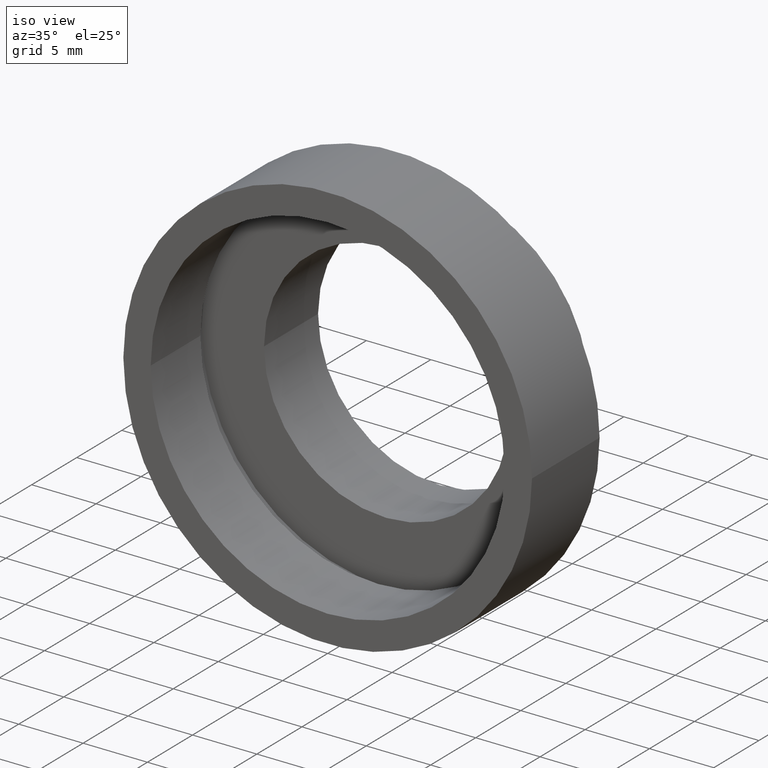
[diagram: clean part render]
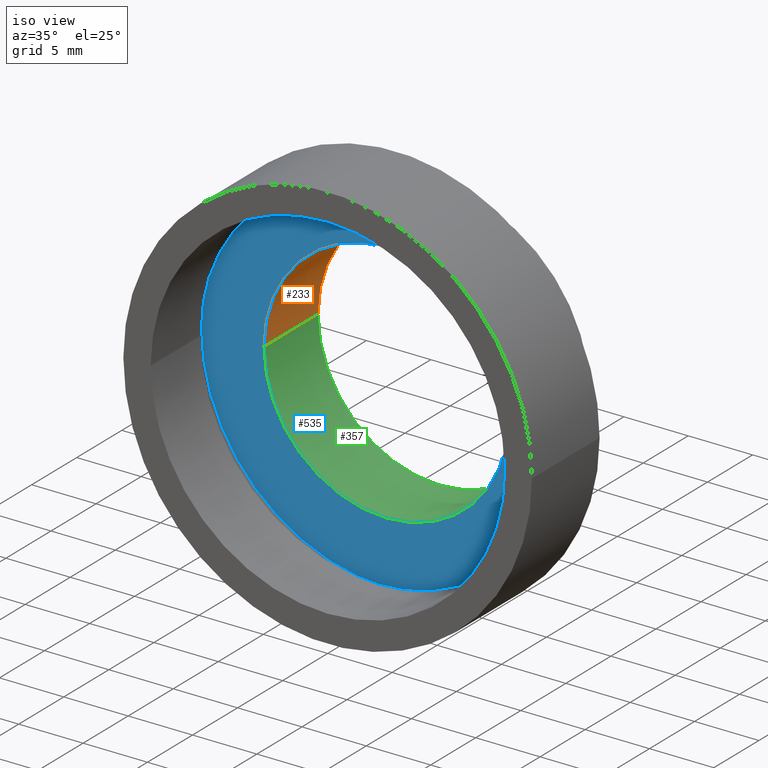
[diagram: same view with three faces highlighted in distinct colors, each labeled with its STEP entity id]
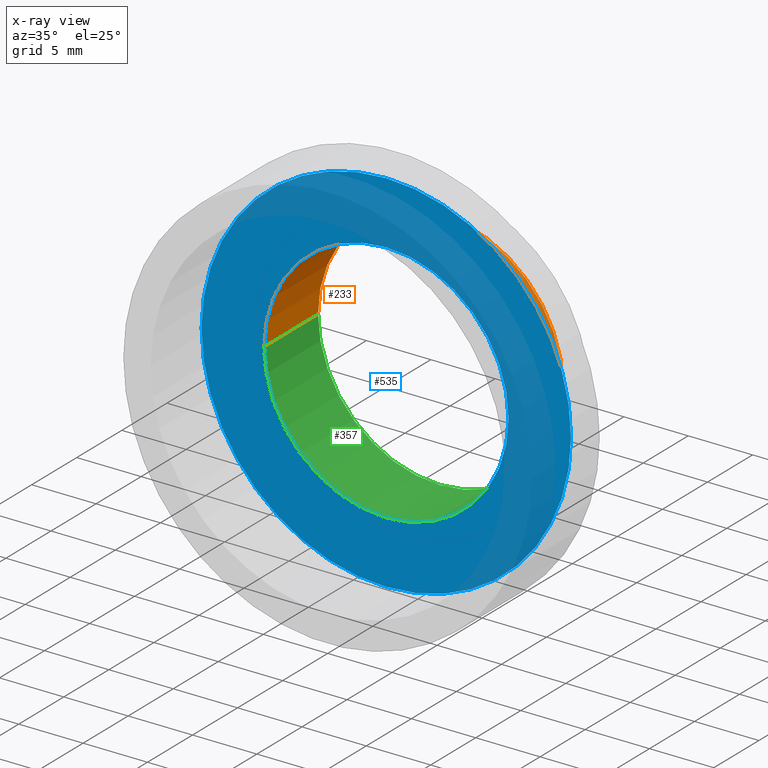
[diagram: x-ray of the same camera — body ghosted, the three highlighted faces saturated]
A machine part, iso view with three faces highlighted in distinct colors.
The next image is the same camera in x-ray (body ghosted, the three faces saturated) — at least one of them is partly hidden behind the body in this view.
Their STEP definitions:

[orange] entity #233 — the highlighted cylindrical surface (partial cylindrical patch) has radius 9.5 mm, axis along (-0, 1, -0).
#1 = AXIS2_PLACEMENT_3D ( 'NONE', #520, #71, #206 ) ;
#11 = EDGE_CURVE ( 'NONE', #402, #564, #388, .T. ) ;
#22 = VERTEX_POINT ( 'NONE', #382 ) ;
#41 = CARTESIAN_POINT ( 'NONE',  ( 9.500000000000001800, 16.88601823708207700, 1.163414459189985700E-015 ) ) ;
#50 = DIRECTION ( 'NONE',  ( -1.224646799147351000E-016, 1.000000000000000000, -0.0000000000000000000 ) ) ;
#71 = DIRECTION ( 'NONE',  ( -1.224646799147351000E-016, 1.000000000000000000, -0.0000000000000000000 ) ) ;
#82 = VECTOR ( 'NONE', #307, 1000.000000000000000 ) ;
#85 = CARTESIAN_POINT ( 'NONE',  ( 5.371323195044471300E-016, 12.50000000000000000, 0.0000000000000000000 ) ) ;
#89 = CIRCLE ( 'NONE', #488, 9.500000000000000000 ) ;
#96 = CARTESIAN_POINT ( 'NONE',  ( -9.500000000000001800, 16.88601823708207700, 0.0000000000000000000 ) ) ;
#98 = CARTESIAN_POINT ( 'NONE',  ( 1.271920398992858000E-015, 6.499999999999997300, 0.0000000000000000000 ) ) ;
#107 = LINE ( 'NONE', #96, #82 ) ;
#111 = CARTESIAN_POINT ( 'NONE',  ( 9.500000000000001800, 12.50000000000000200, 1.163414459189985700E-015 ) ) ;
#128 = EDGE_CURVE ( 'NONE', #22, #564, #417, .T. ) ;
#130 = ORIENTED_EDGE ( 'NONE', *, *, #559, .T. ) ;
#151 = ORIENTED_EDGE ( 'NONE', *, *, #11, .F. ) ;
#155 = DIRECTION ( 'NONE',  ( -1.224646799147351000E-016, 1.000000000000000000, -0.0000000000000000000 ) ) ;
#158 = ORIENTED_EDGE ( 'NONE', *, *, #581, .F. ) ;
#167 = VERTEX_POINT ( 'NONE', #312 ) ;
#206 = DIRECTION ( 'NONE',  ( -1.000000000000000000, 0.0000000000000000000, 0.0000000000000000000 ) ) ;
#233 = ADVANCED_FACE ( 'NONE', ( #283 ), #540, .F. ) ;
#278 = AXIS2_PLACEMENT_3D ( 'NONE', #85, #50, #616 ) ;
#280 = DIRECTION ( 'NONE',  ( -1.000000000000000000, -9.130123557772668300E-017, 0.0000000000000000000 ) ) ;
#283 = FACE_OUTER_BOUND ( 'NONE', #433, .T. ) ;
#307 = DIRECTION ( 'NONE',  ( -1.224646799147351000E-016, 1.000000000000000000, -0.0000000000000000000 ) ) ;
#312 = CARTESIAN_POINT ( 'NONE',  ( -9.499999999999998200, 6.499999999999996400, 0.0000000000000000000 ) ) ;
#382 = CARTESIAN_POINT ( 'NONE',  ( -9.500000000000001800, 12.49999999999999800, 0.0000000000000000000 ) ) ;
#388 = LINE ( 'NONE', #41, #551 ) ;
#402 = VERTEX_POINT ( 'NONE', #479 ) ;
#417 = CIRCLE ( 'NONE', #278, 9.500000000000001800 ) ;
#433 = EDGE_LOOP ( 'NONE', ( #151, #158, #130, #541 ) ) ;
#468 = DIRECTION ( 'NONE',  ( -1.224646799147351000E-016, 1.000000000000000000, -0.0000000000000000000 ) ) ;
#479 = CARTESIAN_POINT ( 'NONE',  ( 9.500000000000001800, 6.499999999999998200, 1.163414459189985700E-015 ) ) ;
#488 = AXIS2_PLACEMENT_3D ( 'NONE', #98, #468, #280 ) ;
#520 = CARTESIAN_POINT ( 'NONE',  ( 0.0000000000000000000, 16.88601823708207700, 0.0000000000000000000 ) ) ;
#540 = CYLINDRICAL_SURFACE ( 'NONE', #1, 9.500000000000001800 ) ;
#541 = ORIENTED_EDGE ( 'NONE', *, *, #128, .T. ) ;
#551 = VECTOR ( 'NONE', #155, 1000.000000000000000 ) ;
#559 = EDGE_CURVE ( 'NONE', #167, #22, #107, .T. ) ;
#564 = VERTEX_POINT ( 'NONE', #111 ) ;
#581 = EDGE_CURVE ( 'NONE', #167, #402, #89, .T. ) ;
#616 = DIRECTION ( 'NONE',  ( -1.000000000000000000, -1.826024711554533400E-016, 0.0000000000000000000 ) ) ;

[blue] entity #535 — the highlighted planar face has unit normal (-0, 1, 0).
#21 = DIRECTION ( 'NONE',  ( -1.224646799147351000E-016, 1.000000000000000000, -0.0000000000000000000 ) ) ;
#57 = ORIENTED_EDGE ( 'NONE', *, *, #581, .T. ) ;
#89 = CIRCLE ( 'NONE', #488, 9.500000000000000000 ) ;
#98 = CARTESIAN_POINT ( 'NONE',  ( 1.271920398992858000E-015, 6.499999999999997300, 0.0000000000000000000 ) ) ;
#103 = DIRECTION ( 'NONE',  ( -1.224646799147351000E-016, 1.000000000000000000, -0.0000000000000000000 ) ) ;
#122 = FACE_BOUND ( 'NONE', #423, .T. ) ;
#132 = FACE_OUTER_BOUND ( 'NONE', #303, .T. ) ;
#134 = DIRECTION ( 'NONE',  ( -1.000000000000000000, -9.130123557772668300E-017, 0.0000000000000000000 ) ) ;
#141 = DIRECTION ( 'NONE',  ( -1.000000000000000000, -1.208866533781747400E-016, 0.0000000000000000000 ) ) ;
#153 = VERTEX_POINT ( 'NONE', #613 ) ;
#156 = DIRECTION ( 'NONE',  ( -1.000000000000000000, -1.208866533781747400E-016, 0.0000000000000000000 ) ) ;
#167 = VERTEX_POINT ( 'NONE', #312 ) ;
#177 = CIRCLE ( 'NONE', #447, 9.500000000000000000 ) ;
#186 = CIRCLE ( 'NONE', #605, 14.34999999999999800 ) ;
#197 = CARTESIAN_POINT ( 'NONE',  ( 9.500000000000001800, 6.499999999999999100, 0.0000000000000000000 ) ) ;
#259 = DIRECTION ( 'NONE',  ( -1.000000000000000000, -1.224646799147351000E-016, 0.0000000000000000000 ) ) ;
#280 = DIRECTION ( 'NONE',  ( -1.000000000000000000, -9.130123557772668300E-017, 0.0000000000000000000 ) ) ;
#303 = EDGE_LOOP ( 'NONE', ( #387, #404 ) ) ;
#306 = EDGE_CURVE ( 'NONE', #402, #167, #177, .T. ) ;
#312 = CARTESIAN_POINT ( 'NONE',  ( -9.499999999999998200, 6.499999999999996400, 0.0000000000000000000 ) ) ;
#345 = ORIENTED_EDGE ( 'NONE', *, *, #306, .T. ) ;
#372 = EDGE_CURVE ( 'NONE', #440, #153, #186, .T. ) ;
#387 = ORIENTED_EDGE ( 'NONE', *, *, #477, .F. ) ;
#402 = VERTEX_POINT ( 'NONE', #479 ) ;
#404 = ORIENTED_EDGE ( 'NONE', *, *, #372, .F. ) ;
#412 = CARTESIAN_POINT ( 'NONE',  ( 14.35000000000000000, 6.499999999999999100, 1.757368156776451600E-015 ) ) ;
#423 = EDGE_LOOP ( 'NONE', ( #57, #345 ) ) ;
#440 = VERTEX_POINT ( 'NONE', #412 ) ;
#447 = AXIS2_PLACEMENT_3D ( 'NONE', #513, #103, #134 ) ;
#455 = AXIS2_PLACEMENT_3D ( 'NONE', #197, #550, #259 ) ;
#468 = DIRECTION ( 'NONE',  ( -1.224646799147351000E-016, 1.000000000000000000, -0.0000000000000000000 ) ) ;
#477 = EDGE_CURVE ( 'NONE', #153, #440, #586, .T. ) ;
#479 = CARTESIAN_POINT ( 'NONE',  ( 9.500000000000001800, 6.499999999999998200, 1.163414459189985700E-015 ) ) ;
#488 = AXIS2_PLACEMENT_3D ( 'NONE', #98, #468, #280 ) ;
#490 = PLANE ( 'NONE',  #455 ) ;
#503 = DIRECTION ( 'NONE',  ( -1.224646799147351000E-016, 1.000000000000000000, -0.0000000000000000000 ) ) ;
#506 = AXIS2_PLACEMENT_3D ( 'NONE', #521, #503, #156 ) ;
#513 = CARTESIAN_POINT ( 'NONE',  ( 1.271920398992858000E-015, 6.499999999999997300, 0.0000000000000000000 ) ) ;
#515 = CARTESIAN_POINT ( 'NONE',  ( 1.271920398992858000E-015, 6.499999999999997300, 0.0000000000000000000 ) ) ;
#521 = CARTESIAN_POINT ( 'NONE',  ( 1.271920398992858000E-015, 6.499999999999997300, 0.0000000000000000000 ) ) ;
#535 = ADVANCED_FACE ( 'NONE', ( #132, #122 ), #490, .F. ) ;
#550 = DIRECTION ( 'NONE',  ( -1.224646799147351000E-016, 1.000000000000000000, 0.0000000000000000000 ) ) ;
#581 = EDGE_CURVE ( 'NONE', #167, #402, #89, .T. ) ;
#586 = CIRCLE ( 'NONE', #506, 14.34999999999999800 ) ;
#605 = AXIS2_PLACEMENT_3D ( 'NONE', #515, #21, #141 ) ;
#613 = CARTESIAN_POINT ( 'NONE',  ( -14.34999999999999600, 6.499999999999995600, 0.0000000000000000000 ) ) ;

[green] entity #357 — the highlighted cylindrical surface (partial cylindrical patch) has radius 9.5 mm, axis along (-0, 1, -0).
#11 = EDGE_CURVE ( 'NONE', #402, #564, #388, .T. ) ;
#22 = VERTEX_POINT ( 'NONE', #382 ) ;
#29 = ORIENTED_EDGE ( 'NONE', *, *, #306, .F. ) ;
#41 = CARTESIAN_POINT ( 'NONE',  ( 9.500000000000001800, 16.88601823708207700, 1.163414459189985700E-015 ) ) ;
#53 = DIRECTION ( 'NONE',  ( -1.224646799147351000E-016, 1.000000000000000000, -0.0000000000000000000 ) ) ;
#82 = VECTOR ( 'NONE', #307, 1000.000000000000000 ) ;
#96 = CARTESIAN_POINT ( 'NONE',  ( -9.500000000000001800, 16.88601823708207700, 0.0000000000000000000 ) ) ;
#97 = ORIENTED_EDGE ( 'NONE', *, *, #183, .T. ) ;
#103 = DIRECTION ( 'NONE',  ( -1.224646799147351000E-016, 1.000000000000000000, -0.0000000000000000000 ) ) ;
#107 = LINE ( 'NONE', #96, #82 ) ;
#111 = CARTESIAN_POINT ( 'NONE',  ( 9.500000000000001800, 12.50000000000000200, 1.163414459189985700E-015 ) ) ;
#134 = DIRECTION ( 'NONE',  ( -1.000000000000000000, -9.130123557772668300E-017, 0.0000000000000000000 ) ) ;
#155 = DIRECTION ( 'NONE',  ( -1.224646799147351000E-016, 1.000000000000000000, -0.0000000000000000000 ) ) ;
#163 = CYLINDRICAL_SURFACE ( 'NONE', #617, 9.500000000000001800 ) ;
#167 = VERTEX_POINT ( 'NONE', #312 ) ;
#177 = CIRCLE ( 'NONE', #447, 9.500000000000000000 ) ;
#182 = DIRECTION ( 'NONE',  ( -1.000000000000000000, -1.826024711554533400E-016, 0.0000000000000000000 ) ) ;
#183 = EDGE_CURVE ( 'NONE', #564, #22, #342, .T. ) ;
#225 = CARTESIAN_POINT ( 'NONE',  ( 5.371323195044471300E-016, 12.50000000000000000, 0.0000000000000000000 ) ) ;
#247 = FACE_OUTER_BOUND ( 'NONE', #321, .T. ) ;
#306 = EDGE_CURVE ( 'NONE', #402, #167, #177, .T. ) ;
#307 = DIRECTION ( 'NONE',  ( -1.224646799147351000E-016, 1.000000000000000000, -0.0000000000000000000 ) ) ;
#312 = CARTESIAN_POINT ( 'NONE',  ( -9.499999999999998200, 6.499999999999996400, 0.0000000000000000000 ) ) ;
#321 = EDGE_LOOP ( 'NONE', ( #29, #502, #97, #574 ) ) ;
#342 = CIRCLE ( 'NONE', #619, 9.500000000000001800 ) ;
#357 = ADVANCED_FACE ( 'NONE', ( #247 ), #163, .F. ) ;
#382 = CARTESIAN_POINT ( 'NONE',  ( -9.500000000000001800, 12.49999999999999800, 0.0000000000000000000 ) ) ;
#388 = LINE ( 'NONE', #41, #551 ) ;
#402 = VERTEX_POINT ( 'NONE', #479 ) ;
#447 = AXIS2_PLACEMENT_3D ( 'NONE', #513, #103, #134 ) ;
#479 = CARTESIAN_POINT ( 'NONE',  ( 9.500000000000001800, 6.499999999999998200, 1.163414459189985700E-015 ) ) ;
#492 = DIRECTION ( 'NONE',  ( -1.224646799147351000E-016, 1.000000000000000000, -0.0000000000000000000 ) ) ;
#495 = DIRECTION ( 'NONE',  ( -1.000000000000000000, 0.0000000000000000000, 0.0000000000000000000 ) ) ;
#502 = ORIENTED_EDGE ( 'NONE', *, *, #11, .T. ) ;
#513 = CARTESIAN_POINT ( 'NONE',  ( 1.271920398992858000E-015, 6.499999999999997300, 0.0000000000000000000 ) ) ;
#551 = VECTOR ( 'NONE', #155, 1000.000000000000000 ) ;
#552 = CARTESIAN_POINT ( 'NONE',  ( 0.0000000000000000000, 16.88601823708207700, 0.0000000000000000000 ) ) ;
#559 = EDGE_CURVE ( 'NONE', #167, #22, #107, .T. ) ;
#564 = VERTEX_POINT ( 'NONE', #111 ) ;
#574 = ORIENTED_EDGE ( 'NONE', *, *, #559, .F. ) ;
#617 = AXIS2_PLACEMENT_3D ( 'NONE', #552, #53, #495 ) ;
#619 = AXIS2_PLACEMENT_3D ( 'NONE', #225, #492, #182 ) ;